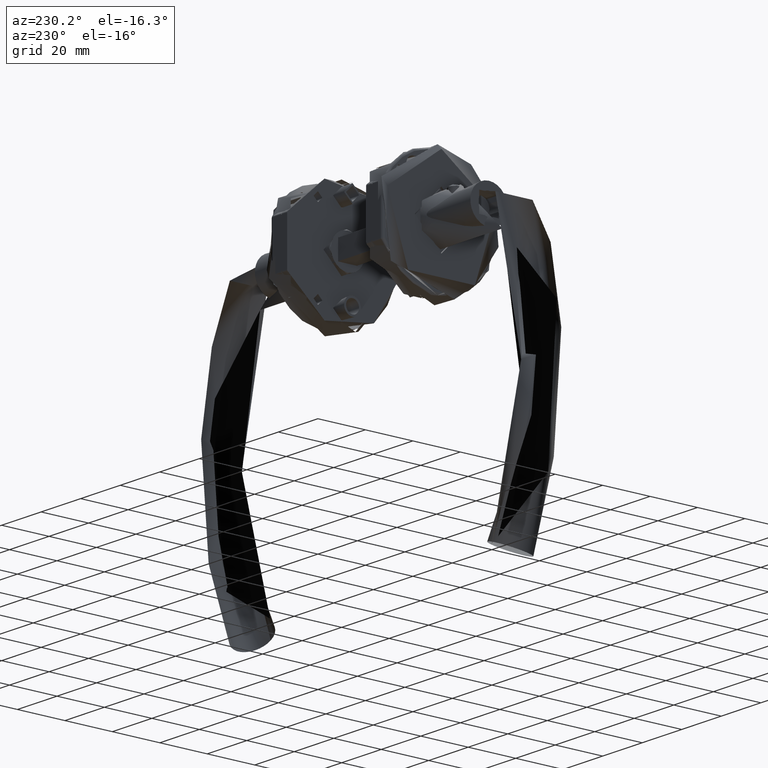
[diagram: clean part render]
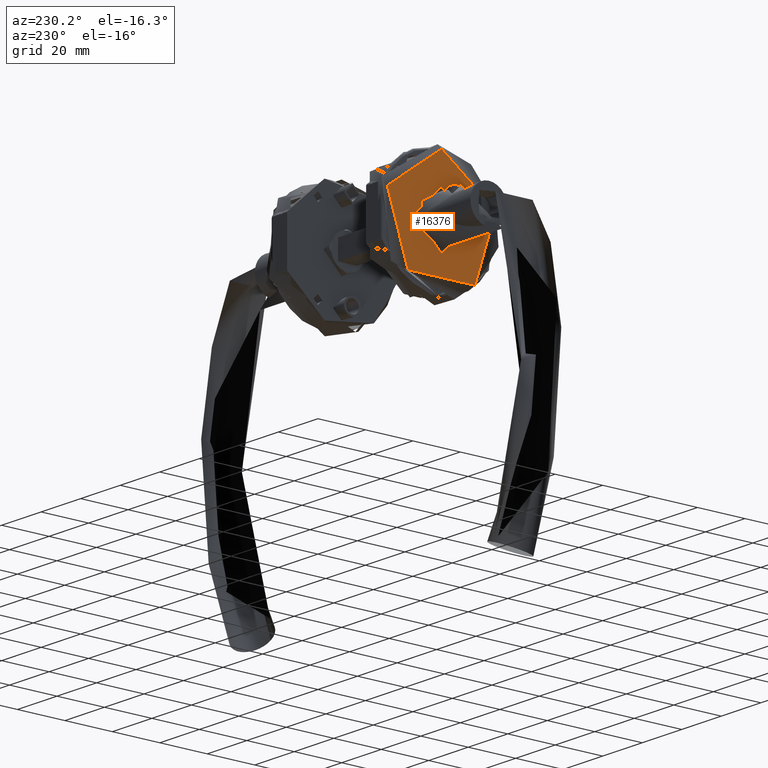
[diagram: same view with one face highlighted and labeled with its STEP entity id]
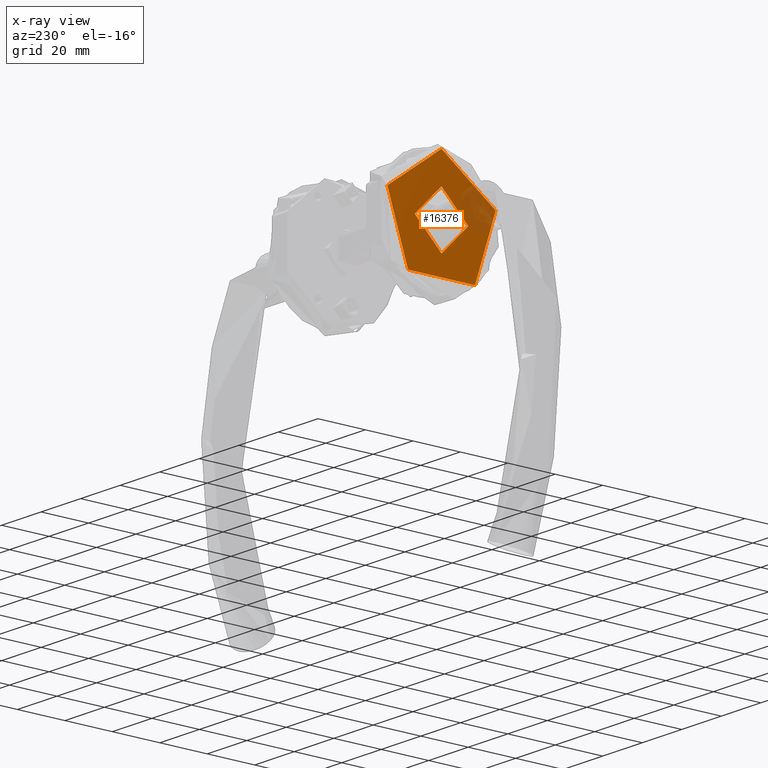
[diagram: x-ray of the same camera — body ghosted, the highlighted face saturated]
A machine part, auxiliary view. The second image highlights one B-rep face of the part: STEP entity #16376.
The next image is the same camera in x-ray: the body ghosted, the highlighted face saturated — about 14% of this face is hidden behind the body in this view.
In plain terms, the highlighted planar face has unit normal (-1, -0, 0).
Its self-contained STEP definition (entity closure, byte-faithful):
#241 = DIRECTION ( 'NONE',  ( 1.000000000000000000, 0.0000000000000000000, 0.0000000000000000000 ) ) ;
#675 = VERTEX_POINT ( 'NONE', #21740 ) ;
#1298 = VERTEX_POINT ( 'NONE', #10086 ) ;
#2741 = CIRCLE ( 'NONE', #20836, 24.00000000000000000 ) ;
#4314 = AXIS2_PLACEMENT_3D ( 'NONE', #9340, #22939, #17154 ) ;
#6307 = ORIENTED_EDGE ( 'NONE', *, *, #11519, .T. ) ;
#6797 = DIRECTION ( 'NONE',  ( 1.000000000000000000, 0.0000000000000000000, 0.0000000000000000000 ) ) ;
#7873 = CARTESIAN_POINT ( 'NONE',  ( 0.0000000000000000000, 0.0000000000000000000, 10.50000000000000000 ) ) ;
#8085 = EDGE_LOOP ( 'NONE', ( #19790 ) ) ;
#8427 = FACE_OUTER_BOUND ( 'NONE', #24475, .T. ) ;
#9340 = CARTESIAN_POINT ( 'NONE',  ( 0.0000000000000000000, 0.0000000000000000000, 10.50000000000000000 ) ) ;
#9828 = DIRECTION ( 'NONE',  ( 0.0000000000000000000, 0.0000000000000000000, 1.000000000000000000 ) ) ;
#10086 = CARTESIAN_POINT ( 'NONE',  ( 24.00000000000000000, 0.0000000000000000000, 10.50000000000000000 ) ) ;
#10624 = DIRECTION ( 'NONE',  ( 0.0000000000000000000, 0.0000000000000000000, 1.000000000000000000 ) ) ;
#11519 = EDGE_CURVE ( 'NONE', #1298, #1298, #2741, .T. ) ;
#12390 = FACE_BOUND ( 'NONE', #8085, .T. ) ;
#13095 = PLANE ( 'NONE',  #4314 ) ;
#16376 = ADVANCED_FACE ( 'NONE', ( #12390, #8427 ), #13095, .T. ) ;
#16534 = EDGE_CURVE ( 'NONE', #675, #675, #19984, .T. ) ;
#17154 = DIRECTION ( 'NONE',  ( 1.000000000000000000, 0.0000000000000000000, -0.0000000000000000000 ) ) ;
#19787 = AXIS2_PLACEMENT_3D ( 'NONE', #7873, #9828, #241 ) ;
#19790 = ORIENTED_EDGE ( 'NONE', *, *, #16534, .F. ) ;
#19984 = CIRCLE ( 'NONE', #19787, 11.30000000000000100 ) ;
#20836 = AXIS2_PLACEMENT_3D ( 'NONE', #24307, #10624, #6797 ) ;
#21740 = CARTESIAN_POINT ( 'NONE',  ( 11.30000000000000100, 0.0000000000000000000, 10.50000000000000000 ) ) ;
#22939 = DIRECTION ( 'NONE',  ( 0.0000000000000000000, 0.0000000000000000000, 1.000000000000000000 ) ) ;
#24307 = CARTESIAN_POINT ( 'NONE',  ( 0.0000000000000000000, 0.0000000000000000000, 10.50000000000000000 ) ) ;
#24475 = EDGE_LOOP ( 'NONE', ( #6307 ) ) ;